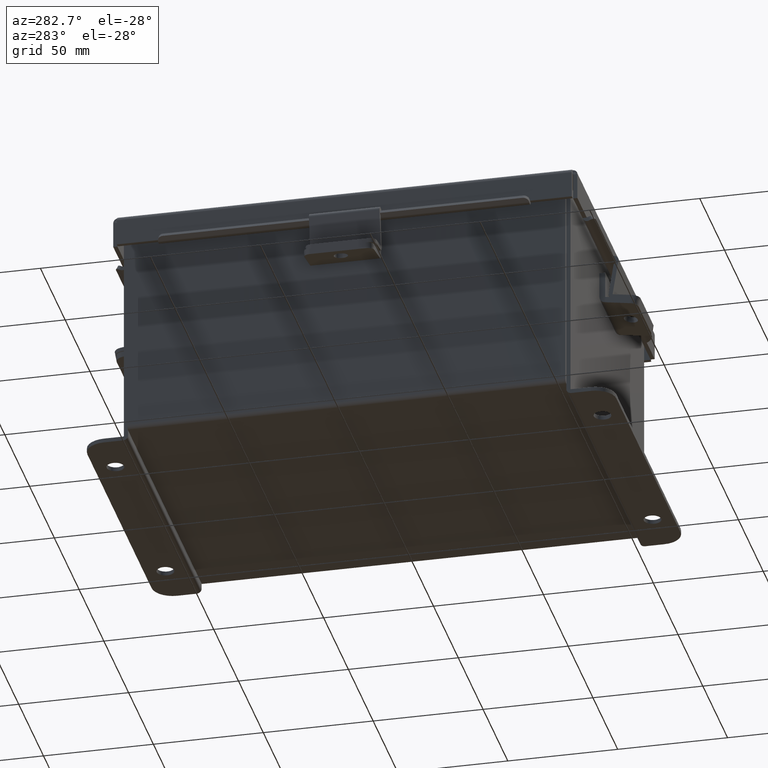
[diagram: clean part render]
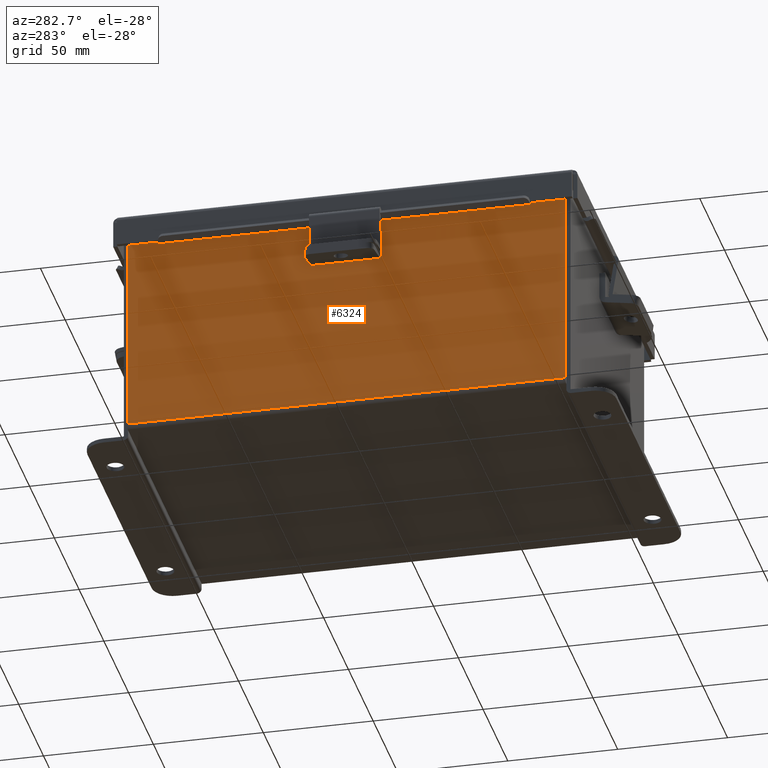
[diagram: same view with one face highlighted and labeled with its STEP entity id]
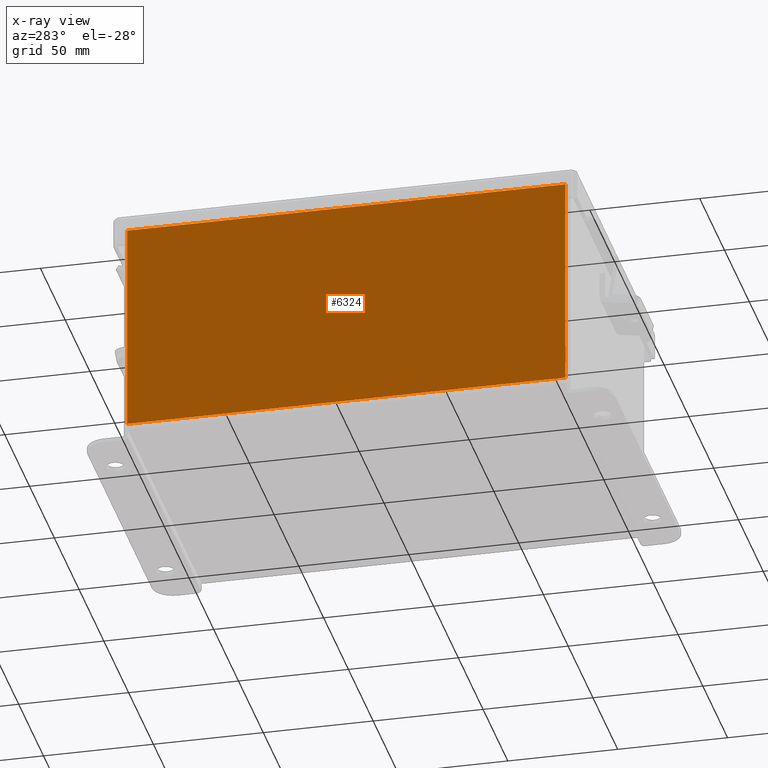
[diagram: x-ray of the same camera — body ghosted, the highlighted face saturated]
A machine part, auxiliary view. The second image highlights one B-rep face of the part: STEP entity #6324.
The next image is the same camera in x-ray: the body ghosted, the highlighted face saturated — about 0% of this face is hidden behind the body in this view.
In plain terms, the highlighted planar face has unit normal (1, 0, 0).
Its self-contained STEP definition (entity closure, byte-faithful):
#34 = LINE ( 'NONE', #3175, #266 ) ;
#266 = VECTOR ( 'NONE', #3201, 39.37007874015748100 ) ;
#620 = LINE ( 'NONE', #6414, #8273 ) ;
#710 = ORIENTED_EDGE ( 'NONE', *, *, #3587, .T. ) ;
#790 = CARTESIAN_POINT ( 'NONE',  ( -2.999999999999999600, 3.925300000000000500, 0.01299999999999979100 ) ) ;
#928 = VERTEX_POINT ( 'NONE', #790 ) ;
#989 = PLANE ( 'NONE',  #5045 ) ;
#1343 = VECTOR ( 'NONE', #6586, 39.37007874015748100 ) ;
#2306 = VERTEX_POINT ( 'NONE', #8422 ) ;
#2364 = EDGE_CURVE ( 'NONE', #2306, #5411, #2390, .T. ) ;
#2390 = LINE ( 'NONE', #3196, #6072 ) ;
#2466 = DIRECTION ( 'NONE',  ( 0.0000000000000000000, 1.000000000000000000, 0.0000000000000000000 ) ) ;
#2703 = ORIENTED_EDGE ( 'NONE', *, *, #5792, .T. ) ;
#3175 = CARTESIAN_POINT ( 'NONE',  ( -2.999999999999999600, 3.925300000000000500, -1.090178089971645100E-014 ) ) ;
#3196 = CARTESIAN_POINT ( 'NONE',  ( -3.000000000000013800, -3.925299999999998200, 3.837599999999999700 ) ) ;
#3201 = DIRECTION ( 'NONE',  ( 3.547301710985643000E-015, 0.0000000000000000000, -1.000000000000000000 ) ) ;
#3319 = LINE ( 'NONE', #6735, #1343 ) ;
#3587 = EDGE_CURVE ( 'NONE', #6250, #2306, #3319, .T. ) ;
#3632 = FACE_OUTER_BOUND ( 'NONE', #5824, .T. ) ;
#3980 = CARTESIAN_POINT ( 'NONE',  ( -2.999999999999999600, 0.0000000000000000000, -1.090178089971645100E-014 ) ) ;
#4695 = DIRECTION ( 'NONE',  ( 3.547301710985643000E-015, 0.0000000000000000000, -1.000000000000000000 ) ) ;
#4968 = ORIENTED_EDGE ( 'NONE', *, *, #5434, .F. ) ;
#5045 = AXIS2_PLACEMENT_3D ( 'NONE', #3980, #9174, #4695 ) ;
#5411 = VERTEX_POINT ( 'NONE', #6632 ) ;
#5434 = EDGE_CURVE ( 'NONE', #6250, #928, #620, .T. ) ;
#5792 = EDGE_CURVE ( 'NONE', #5411, #928, #34, .T. ) ;
#5824 = EDGE_LOOP ( 'NONE', ( #8662, #2703, #4968, #710 ) ) ;
#6072 = VECTOR ( 'NONE', #2466, 39.37007874015748100 ) ;
#6250 = VERTEX_POINT ( 'NONE', #7577 ) ;
#6324 = ADVANCED_FACE ( 'NONE', ( #3632 ), #989, .F. ) ;
#6414 = CARTESIAN_POINT ( 'NONE',  ( -2.999999999999999600, 3.925300000000000500, 0.01299999999999984300 ) ) ;
#6430 = DIRECTION ( 'NONE',  ( 2.468776669828532900E-031, 1.000000000000000000, -6.959590333641414100E-017 ) ) ;
#6586 = DIRECTION ( 'NONE',  ( -3.547301710985643000E-015, 2.837841368788514100E-016, 1.000000000000000000 ) ) ;
#6632 = CARTESIAN_POINT ( 'NONE',  ( -3.000000000000013300, 3.925300000000000500, 3.837599999999999700 ) ) ;
#6735 = CARTESIAN_POINT ( 'NONE',  ( -2.999999999999999600, -3.925299999999999100, -9.791967652290343300E-015 ) ) ;
#7577 = CARTESIAN_POINT ( 'NONE',  ( -2.999999999999999600, -3.925299999999999100, 0.01300000000000039000 ) ) ;
#8273 = VECTOR ( 'NONE', #6430, 39.37007874015748100 ) ;
#8422 = CARTESIAN_POINT ( 'NONE',  ( -3.000000000000013800, -3.925299999999998200, 3.837599999999999700 ) ) ;
#8662 = ORIENTED_EDGE ( 'NONE', *, *, #2364, .T. ) ;
#9174 = DIRECTION ( 'NONE',  ( 1.000000000000000000, 0.0000000000000000000, 3.547301710985643000E-015 ) ) ;